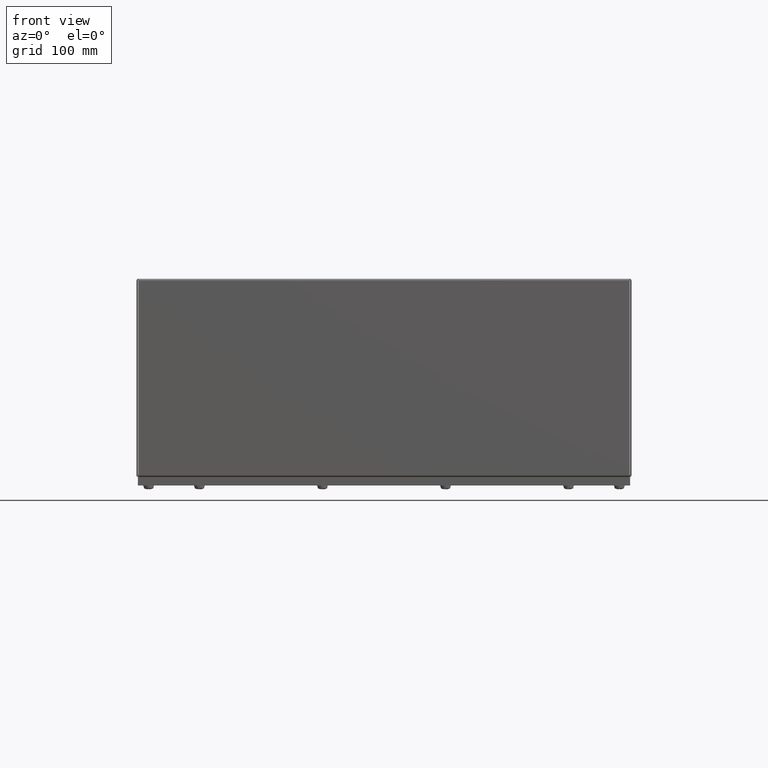
[diagram: clean part render]
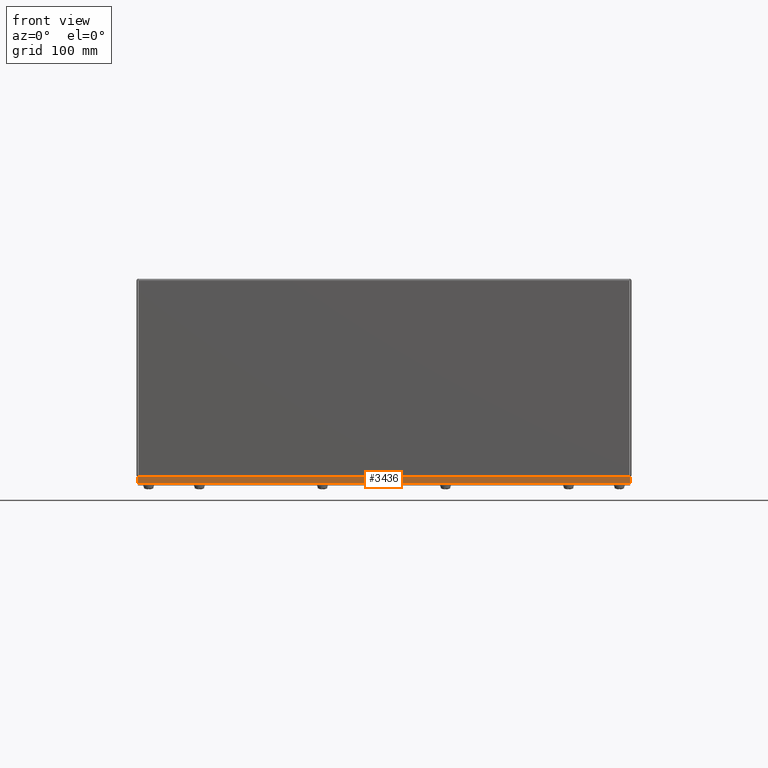
[diagram: same view with one face highlighted and labeled with its STEP entity id]
A machine part, front view. The second image highlights one B-rep face of the part: STEP entity #3436.
In plain terms, the highlighted planar face has unit normal (-0, -1, 0).
Its self-contained STEP definition (entity closure, byte-faithful):
#404=PLANE($,#3701);
#618=LINE($,#5881,#830);
#623=LINE($,#5892,#835);
#625=LINE($,#5895,#837);
#626=LINE($,#5896,#838);
#830=VECTOR($,#4382,0.25);
#835=VECTOR($,#4391,0.25);
#837=VECTOR($,#4395,20.);
#838=VECTOR($,#4396,20.);
#1152=FACE_OUTER_BOUND($,#1434,.T.);
#1434=EDGE_LOOP($,(#2783,#2784,#2785,#2786));
#1809=VERTEX_POINT($,#5874);
#1812=VERTEX_POINT($,#5879);
#1815=VERTEX_POINT($,#5889);
#1816=VERTEX_POINT($,#5891);
#2156=EDGE_CURVE($,#1812,#1809,#618,.T.);
#2161=EDGE_CURVE($,#1816,#1815,#623,.T.);
#2163=EDGE_CURVE($,#1815,#1809,#625,.T.);
#2164=EDGE_CURVE($,#1812,#1816,#626,.T.);
#2783=ORIENTED_EDGE($,*,*,#2163,.T.);
#2784=ORIENTED_EDGE($,*,*,#2156,.F.);
#2785=ORIENTED_EDGE($,*,*,#2164,.T.);
#2786=ORIENTED_EDGE($,*,*,#2161,.T.);
#3436=ADVANCED_FACE($,(#1152),#404,.T.);
#3701=AXIS2_PLACEMENT_3D($,#5894,#4393,#4394);
#4382=DIRECTION($,(0.,0.,1.));
#4391=DIRECTION($,(0.,0.,1.));
#4393=DIRECTION('center_axis',(-3.88218949419789E-033,-1.,0.));
#4394=DIRECTION('ref_axis',(0.,0.,-1.));
#4395=DIRECTION($,(-1.,3.88218949419789E-033,0.));
#4396=DIRECTION($,(1.,-3.88218949419789E-033,0.));
#5874=CARTESIAN_POINT('',(0.,0.,0.25));
#5879=CARTESIAN_POINT('',(0.,0.,0.));
#5881=CARTESIAN_POINT($,(0.,0.,0.));
#5889=CARTESIAN_POINT('',(20.,-7.76437898839578E-032,0.25));
#5891=CARTESIAN_POINT('',(20.,-7.76437898839578E-032,0.));
#5892=CARTESIAN_POINT($,(20.,-7.76437898839578E-032,0.));
#5894=CARTESIAN_POINT('Origin',(20.,-7.76437898839578E-032,0.));
#5895=CARTESIAN_POINT($,(0.,0.,0.25));
#5896=CARTESIAN_POINT($,(0.,0.,0.));